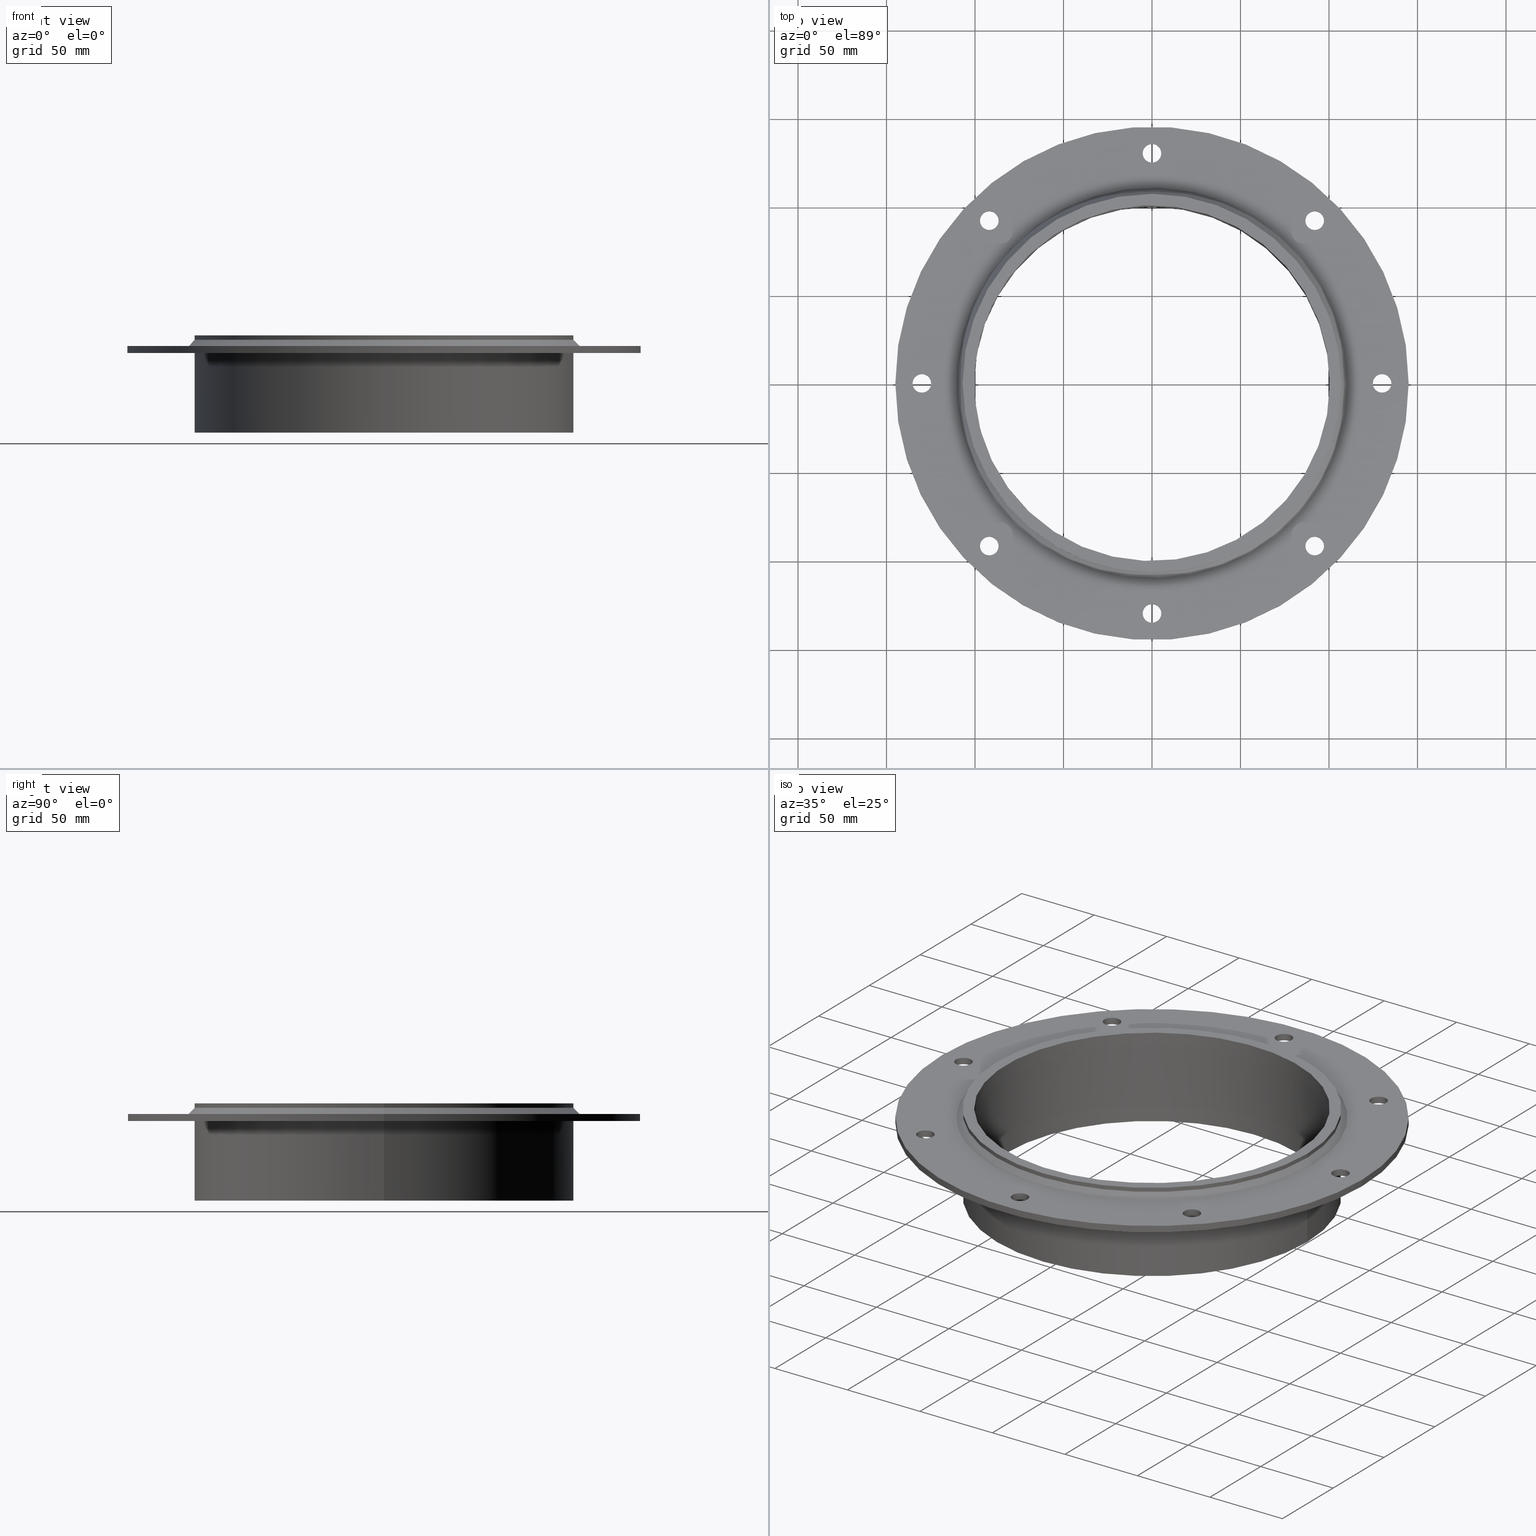
[diagram: canonical four-view strip — front | top / right | iso, engineering-drawing reading convention]
A machine part, canonical four-view strip (front | top / right | iso — engineering-drawing reading convention). The complete STEP part file that produces these views, byte-faithful:
ISO-10303-21;
HEADER;
/****************************************************************
 * Generated by software with PDElib inside                    *
 * PDElib Version v51a, created Wed 11/30/2011                  *
 * ITI Transcendata (http://www.transcendata.com/)              *
 ****************************************************************/
FILE_DESCRIPTION((''),'2;1');
FILE_NAME('C:\\Users\\se-mareng\\Desktop\\RTD\\SLF_\\step\\SLFR200.stp','2017-02-08T07:20:09',('se-mareng'),(''),'Autodesk Inventor 2013','Autodesk Inventor 2013','');
FILE_SCHEMA(('AUTOMOTIVE_DESIGN { 1 0 10303 214 1 1 1 1 }'));
ENDSEC;
DATA;
#5=APPLICATION_CONTEXT('automotive design');
#6=APPLICATION_PROTOCOL_DEFINITION('International Standard','automotive_design',2001,#5);
#7=PRODUCT_CONTEXT('',#5,'mechanical');
#8=PRODUCT('SLFR200_old','SLFR200_old',$,(#7));
#9=PRODUCT_RELATED_PRODUCT_CATEGORY('part',$,(#8));
#10=PRODUCT_DEFINITION_FORMATION('',$,#8);
#11=PRODUCT_DEFINITION_CONTEXT('part definition',#5,'design');
#12=PRODUCT_DEFINITION('',$,#10,#11);
#18=(NAMED_UNIT(*)PLANE_ANGLE_UNIT()SI_UNIT($,.RADIAN.));
#19=DIMENSIONAL_EXPONENTS(0.0,0.0,0.0,0.0,0.0,0.0,0.0);
#20=PLANE_ANGLE_MEASURE_WITH_UNIT(PLANE_ANGLE_MEASURE(0.0174532925),#18);
#24=(CONVERSION_BASED_UNIT('DEGREE',#20)NAMED_UNIT(#19)PLANE_ANGLE_UNIT());
#28=(NAMED_UNIT(*)SI_UNIT($,.STERADIAN.)SOLID_ANGLE_UNIT());
#32=(LENGTH_UNIT()NAMED_UNIT(*)SI_UNIT(.MILLI.,.METRE.));
#34=UNCERTAINTY_MEASURE_WITH_UNIT(LENGTH_MEASURE(0.01),#32,'DISTANCE_ACCURACY_VALUE','');
#36=(GEOMETRIC_REPRESENTATION_CONTEXT(3)GLOBAL_UNCERTAINTY_ASSIGNED_CONTEXT((#34))GLOBAL_UNIT_ASSIGNED_CONTEXT((#24,#28,#32))REPRESENTATION_CONTEXT('None','None'));
#37=AXIS2_PLACEMENT_3D('',#38,#39,#40);
#38=CARTESIAN_POINT('',(0.0,0.0,0.0));
#39=DIRECTION('',(0.0,0.0,1.0));
#40=DIRECTION('',(1.0,0.0,0.0));
#41=SHAPE_REPRESENTATION('',(#37),#36);
#42=PRODUCT_DEFINITION_SHAPE('','',#12);
#43=SHAPE_DEFINITION_REPRESENTATION(#42,#41);
#49=(NAMED_UNIT(*)PLANE_ANGLE_UNIT()SI_UNIT($,.RADIAN.));
#50=DIMENSIONAL_EXPONENTS(0.0,0.0,0.0,0.0,0.0,0.0,0.0);
#51=PLANE_ANGLE_MEASURE_WITH_UNIT(PLANE_ANGLE_MEASURE(0.0174532925),#49);
#55=(CONVERSION_BASED_UNIT('DEGREE',#51)NAMED_UNIT(#50)PLANE_ANGLE_UNIT());
#59=(NAMED_UNIT(*)SI_UNIT($,.STERADIAN.)SOLID_ANGLE_UNIT());
#63=(LENGTH_UNIT()NAMED_UNIT(*)SI_UNIT(.MILLI.,.METRE.));
#65=UNCERTAINTY_MEASURE_WITH_UNIT(LENGTH_MEASURE(0.000001),#63,'DISTANCE_ACCURACY_VALUE','');
#67=(GEOMETRIC_REPRESENTATION_CONTEXT(3)GLOBAL_UNCERTAINTY_ASSIGNED_CONTEXT((#65))GLOBAL_UNIT_ASSIGNED_CONTEXT((#55,#59,#63))REPRESENTATION_CONTEXT('','3D'));
#68=CARTESIAN_POINT('',(-130.0,0.0,-419.79342672401168));
#69=DIRECTION('',(0.0,0.0,1.0));
#70=DIRECTION('',(1.0,0.0,0.0));
#71=AXIS2_PLACEMENT_3D('',#68,#69,#70);
#72=CYLINDRICAL_SURFACE('',#71,5.25);
#73=CARTESIAN_POINT('',(-135.25,-6.429396E-016,-10.0));
#74=VERTEX_POINT('',#73);
#75=CARTESIAN_POINT('',(-130.0,0.0,-10.0));
#76=DIRECTION('',(0.0,0.0,1.0));
#77=DIRECTION('',(1.0,0.0,0.0));
#78=AXIS2_PLACEMENT_3D('',#75,#76,#77);
#79=CIRCLE('',#78,5.25);
#80=EDGE_CURVE('',#74,#74,#79,.T.);
#81=ORIENTED_EDGE('',*,*,#80,.F.);
#82=EDGE_LOOP('',(#81));
#83=FACE_OUTER_BOUND('',#82,.T.);
#84=CARTESIAN_POINT('',(-124.75,0.0,-6.000000000000004));
#85=VERTEX_POINT('',#84);
#86=CARTESIAN_POINT('',(-130.0,0.0,-6.000000000000014));
#87=DIRECTION('',(0.0,0.0,-1.0));
#88=DIRECTION('',(1.0,0.0,0.0));
#89=AXIS2_PLACEMENT_3D('',#86,#87,#88);
#90=CIRCLE('',#89,5.25);
#91=EDGE_CURVE('',#85,#85,#90,.T.);
#92=ORIENTED_EDGE('',*,*,#91,.F.);
#93=EDGE_LOOP('',(#92));
#94=FACE_BOUND('',#93,.T.);
#95=ADVANCED_FACE('',(#83,#94),#72,.F.);
#96=CARTESIAN_POINT('',(-2.664535E-014,-130.0,-419.79342672401168));
#97=DIRECTION('',(0.0,0.0,1.0));
#98=DIRECTION('',(1.0,0.0,0.0));
#99=AXIS2_PLACEMENT_3D('',#96,#97,#98);
#100=CYLINDRICAL_SURFACE('',#99,5.25);
#101=CARTESIAN_POINT('',(-5.250000000000027,-130.0,-10.0));
#102=VERTEX_POINT('',#101);
#103=CARTESIAN_POINT('',(-2.664535E-014,-130.0,-10.0));
#104=DIRECTION('',(0.0,0.0,1.0));
#105=DIRECTION('',(1.0,0.0,0.0));
#106=AXIS2_PLACEMENT_3D('',#103,#104,#105);
#107=CIRCLE('',#106,5.25);
#108=EDGE_CURVE('',#102,#102,#107,.T.);
#109=ORIENTED_EDGE('',*,*,#108,.F.);
#110=EDGE_LOOP('',(#109));
#111=FACE_OUTER_BOUND('',#110,.T.);
#112=CARTESIAN_POINT('',(5.249999999999973,-130.0,-6.000000000000004));
#113=VERTEX_POINT('',#112);
#114=CARTESIAN_POINT('',(-2.664535E-014,-130.0,-6.000000000000014));
#115=DIRECTION('',(0.0,0.0,-1.0));
#116=DIRECTION('',(1.0,0.0,0.0));
#117=AXIS2_PLACEMENT_3D('',#114,#115,#116);
#118=CIRCLE('',#117,5.25);
#119=EDGE_CURVE('',#113,#113,#118,.T.);
#120=ORIENTED_EDGE('',*,*,#119,.F.);
#121=EDGE_LOOP('',(#120));
#122=FACE_BOUND('',#121,.T.);
#123=ADVANCED_FACE('',(#111,#122),#100,.F.);
#124=CARTESIAN_POINT('',(130.0,-2.664535E-014,-419.79342672401168));
#125=DIRECTION('',(0.0,0.0,1.0));
#126=DIRECTION('',(1.0,0.0,0.0));
#127=AXIS2_PLACEMENT_3D('',#124,#125,#126);
#128=CYLINDRICAL_SURFACE('',#127,5.25);
#129=CARTESIAN_POINT('',(124.75,-2.728829E-014,-10.0));
#130=VERTEX_POINT('',#129);
#131=CARTESIAN_POINT('',(130.0,-2.664535E-014,-10.0));
#132=DIRECTION('',(0.0,0.0,1.0));
#133=DIRECTION('',(1.0,0.0,0.0));
#134=AXIS2_PLACEMENT_3D('',#131,#132,#133);
#135=CIRCLE('',#134,5.25);
#136=EDGE_CURVE('',#130,#130,#135,.T.);
#137=ORIENTED_EDGE('',*,*,#136,.F.);
#138=EDGE_LOOP('',(#137));
#139=FACE_OUTER_BOUND('',#138,.T.);
#140=CARTESIAN_POINT('',(135.25,-2.664535E-014,-6.000000000000004));
#141=VERTEX_POINT('',#140);
#142=CARTESIAN_POINT('',(130.0,-2.664535E-014,-6.000000000000014));
#143=DIRECTION('',(0.0,0.0,-1.0));
#144=DIRECTION('',(1.0,0.0,0.0));
#145=AXIS2_PLACEMENT_3D('',#142,#143,#144);
#146=CIRCLE('',#145,5.25);
#147=EDGE_CURVE('',#141,#141,#146,.T.);
#148=ORIENTED_EDGE('',*,*,#147,.F.);
#149=EDGE_LOOP('',(#148));
#150=FACE_BOUND('',#149,.T.);
#151=ADVANCED_FACE('',(#139,#150),#128,.F.);
#152=CARTESIAN_POINT('',(0.0,130.0,-419.79342672401168));
#153=DIRECTION('',(0.0,0.0,1.0));
#154=DIRECTION('',(1.0,0.0,0.0));
#155=AXIS2_PLACEMENT_3D('',#152,#153,#154);
#156=CYLINDRICAL_SURFACE('',#155,5.25);
#157=CARTESIAN_POINT('',(-5.25,130.0,-10.0));
#158=VERTEX_POINT('',#157);
#159=CARTESIAN_POINT('',(0.0,130.0,-10.0));
#160=DIRECTION('',(0.0,0.0,1.0));
#161=DIRECTION('',(1.0,0.0,0.0));
#162=AXIS2_PLACEMENT_3D('',#159,#160,#161);
#163=CIRCLE('',#162,5.25);
#164=EDGE_CURVE('',#158,#158,#163,.T.);
#165=ORIENTED_EDGE('',*,*,#164,.F.);
#166=EDGE_LOOP('',(#165));
#167=FACE_OUTER_BOUND('',#166,.T.);
#168=CARTESIAN_POINT('',(5.25,130.0,-6.000000000000004));
#169=VERTEX_POINT('',#168);
#170=CARTESIAN_POINT('',(0.0,130.0,-6.000000000000014));
#171=DIRECTION('',(0.0,0.0,-1.0));
#172=DIRECTION('',(1.0,0.0,0.0));
#173=AXIS2_PLACEMENT_3D('',#170,#171,#172);
#174=CIRCLE('',#173,5.25);
#175=EDGE_CURVE('',#169,#169,#174,.T.);
#176=ORIENTED_EDGE('',*,*,#175,.F.);
#177=EDGE_LOOP('',(#176));
#178=FACE_BOUND('',#177,.T.);
#179=ADVANCED_FACE('',(#167,#178),#156,.F.);
#180=CARTESIAN_POINT('',(91.92388155425121,91.923881554251182,-419.79342672401168));
#181=DIRECTION('',(0.0,0.0,1.0));
#182=DIRECTION('',(1.0,0.0,0.0));
#183=AXIS2_PLACEMENT_3D('',#180,#181,#182);
#184=CYLINDRICAL_SURFACE('',#183,5.25);
#185=CARTESIAN_POINT('',(86.67388155425121,91.923881554251182,-10.0));
#186=VERTEX_POINT('',#185);
#187=CARTESIAN_POINT('',(91.92388155425121,91.923881554251182,-10.0));
#188=DIRECTION('',(0.0,0.0,1.0));
#189=DIRECTION('',(1.0,0.0,0.0));
#190=AXIS2_PLACEMENT_3D('',#187,#188,#189);
#191=CIRCLE('',#190,5.25);
#192=EDGE_CURVE('',#186,#186,#191,.T.);
#193=ORIENTED_EDGE('',*,*,#192,.F.);
#194=EDGE_LOOP('',(#193));
#195=FACE_OUTER_BOUND('',#194,.T.);
#196=CARTESIAN_POINT('',(97.17388155425121,91.923881554251182,-6.000000000000004));
#197=VERTEX_POINT('',#196);
#198=CARTESIAN_POINT('',(91.92388155425121,91.923881554251182,-6.000000000000014));
#199=DIRECTION('',(0.0,0.0,-1.0));
#200=DIRECTION('',(1.0,0.0,0.0));
#201=AXIS2_PLACEMENT_3D('',#198,#199,#200);
#202=CIRCLE('',#201,5.25);
#203=EDGE_CURVE('',#197,#197,#202,.T.);
#204=ORIENTED_EDGE('',*,*,#203,.F.);
#205=EDGE_LOOP('',(#204));
#206=FACE_BOUND('',#205,.T.);
#207=ADVANCED_FACE('',(#195,#206),#184,.F.);
#208=CARTESIAN_POINT('',(91.923881554251182,-91.92388155425121,-419.79342672401168));
#209=DIRECTION('',(0.0,0.0,1.0));
#210=DIRECTION('',(1.0,0.0,0.0));
#211=AXIS2_PLACEMENT_3D('',#208,#209,#210);
#212=CYLINDRICAL_SURFACE('',#211,5.25);
#213=CARTESIAN_POINT('',(86.673881554251167,-91.92388155425121,-10.0));
#214=VERTEX_POINT('',#213);
#215=CARTESIAN_POINT('',(91.923881554251182,-91.92388155425121,-10.0));
#216=DIRECTION('',(0.0,0.0,1.0));
#217=DIRECTION('',(1.0,0.0,0.0));
#218=AXIS2_PLACEMENT_3D('',#215,#216,#217);
#219=CIRCLE('',#218,5.25);
#220=EDGE_CURVE('',#214,#214,#219,.T.);
#221=ORIENTED_EDGE('',*,*,#220,.F.);
#222=EDGE_LOOP('',(#221));
#223=FACE_OUTER_BOUND('',#222,.T.);
#224=CARTESIAN_POINT('',(97.173881554251182,-91.92388155425121,-6.000000000000004));
#225=VERTEX_POINT('',#224);
#226=CARTESIAN_POINT('',(91.923881554251182,-91.92388155425121,-6.000000000000014));
#227=DIRECTION('',(0.0,0.0,-1.0));
#228=DIRECTION('',(1.0,0.0,0.0));
#229=AXIS2_PLACEMENT_3D('',#226,#227,#228);
#230=CIRCLE('',#229,5.25);
#231=EDGE_CURVE('',#225,#225,#230,.T.);
#232=ORIENTED_EDGE('',*,*,#231,.F.);
#233=EDGE_LOOP('',(#232));
#234=FACE_BOUND('',#233,.T.);
#235=ADVANCED_FACE('',(#223,#234),#212,.F.);
#236=CARTESIAN_POINT('',(-91.92388155425121,-91.923881554251196,-419.79342672401168));
#237=DIRECTION('',(0.0,0.0,1.0));
#238=DIRECTION('',(1.0,0.0,0.0));
#239=AXIS2_PLACEMENT_3D('',#236,#237,#238);
#240=CYLINDRICAL_SURFACE('',#239,5.25);
#241=CARTESIAN_POINT('',(-97.17388155425121,-91.923881554251196,-10.0));
#242=VERTEX_POINT('',#241);
#243=CARTESIAN_POINT('',(-91.92388155425121,-91.923881554251196,-10.0));
#244=DIRECTION('',(0.0,0.0,1.0));
#245=DIRECTION('',(1.0,0.0,0.0));
#246=AXIS2_PLACEMENT_3D('',#243,#244,#245);
#247=CIRCLE('',#246,5.25);
#248=EDGE_CURVE('',#242,#242,#247,.T.);
#249=ORIENTED_EDGE('',*,*,#248,.F.);
#250=EDGE_LOOP('',(#249));
#251=FACE_OUTER_BOUND('',#250,.T.);
#252=CARTESIAN_POINT('',(-86.67388155425121,-91.923881554251196,-6.000000000000004));
#253=VERTEX_POINT('',#252);
#254=CARTESIAN_POINT('',(-91.92388155425121,-91.923881554251196,-6.000000000000014));
#255=DIRECTION('',(0.0,0.0,-1.0));
#256=DIRECTION('',(1.0,0.0,0.0));
#257=AXIS2_PLACEMENT_3D('',#254,#255,#256);
#258=CIRCLE('',#257,5.25);
#259=EDGE_CURVE('',#253,#253,#258,.T.);
#260=ORIENTED_EDGE('',*,*,#259,.F.);
#261=EDGE_LOOP('',(#260));
#262=FACE_BOUND('',#261,.T.);
#263=ADVANCED_FACE('',(#251,#262),#240,.F.);
#264=CARTESIAN_POINT('',(-91.923881554251196,91.92388155425121,-419.79342672401168));
#265=DIRECTION('',(0.0,0.0,1.0));
#266=DIRECTION('',(1.0,0.0,0.0));
#267=AXIS2_PLACEMENT_3D('',#264,#265,#266);
#268=CYLINDRICAL_SURFACE('',#267,5.25);
#269=CARTESIAN_POINT('',(-97.173881554251196,91.92388155425121,-10.0));
#270=VERTEX_POINT('',#269);
#271=CARTESIAN_POINT('',(-91.923881554251196,91.92388155425121,-10.0));
#272=DIRECTION('',(0.0,0.0,1.0));
#273=DIRECTION('',(1.0,0.0,0.0));
#274=AXIS2_PLACEMENT_3D('',#271,#272,#273);
#275=CIRCLE('',#274,5.25);
#276=EDGE_CURVE('',#270,#270,#275,.T.);
#277=ORIENTED_EDGE('',*,*,#276,.F.);
#278=EDGE_LOOP('',(#277));
#279=FACE_OUTER_BOUND('',#278,.T.);
#280=CARTESIAN_POINT('',(-86.673881554251182,91.92388155425121,-6.000000000000004));
#281=VERTEX_POINT('',#280);
#282=CARTESIAN_POINT('',(-91.923881554251196,91.92388155425121,-6.000000000000014));
#283=DIRECTION('',(0.0,0.0,-1.0));
#284=DIRECTION('',(1.0,0.0,0.0));
#285=AXIS2_PLACEMENT_3D('',#282,#283,#284);
#286=CIRCLE('',#285,5.25);
#287=EDGE_CURVE('',#281,#281,#286,.T.);
#288=ORIENTED_EDGE('',*,*,#287,.F.);
#289=EDGE_LOOP('',(#288));
#290=FACE_BOUND('',#289,.T.);
#291=ADVANCED_FACE('',(#279,#290),#268,.F.);
#292=CARTESIAN_POINT('',(0.0,0.0,-4.250000000000003));
#293=DIRECTION('',(0.0,0.0,-1.0));
#294=DIRECTION('',(-1.0,0.0,0.0));
#295=AXIS2_PLACEMENT_3D('',#292,#293,#294);
#296=CONICAL_SURFACE('',#295,108.75,44.999999999999979);
#297=CARTESIAN_POINT('',(110.5,1.353235E-014,-6.000000000000004));
#298=VERTEX_POINT('',#297);
#299=CARTESIAN_POINT('',(0.0,0.0,-6.000000000000004));
#300=DIRECTION('',(0.0,0.0,1.0));
#301=DIRECTION('',(-1.0,0.0,0.0));
#302=AXIS2_PLACEMENT_3D('',#299,#300,#301);
#303=CIRCLE('',#302,110.5);
#304=EDGE_CURVE('',#298,#298,#303,.T.);
#305=ORIENTED_EDGE('',*,*,#304,.T.);
#306=EDGE_LOOP('',(#305));
#307=FACE_OUTER_BOUND('',#306,.T.);
#308=CARTESIAN_POINT('',(107.00000000000001,-1.310372E-014,-2.500000000000003));
#309=VERTEX_POINT('',#308);
#310=CARTESIAN_POINT('',(0.0,0.0,-2.500000000000003));
#311=DIRECTION('',(0.0,0.0,-1.0));
#312=DIRECTION('',(-1.0,0.0,0.0));
#313=AXIS2_PLACEMENT_3D('',#310,#311,#312);
#314=CIRCLE('',#313,107.00000000000001);
#315=EDGE_CURVE('',#309,#309,#314,.T.);
#316=ORIENTED_EDGE('',*,*,#315,.T.);
#317=EDGE_LOOP('',(#316));
#318=FACE_BOUND('',#317,.T.);
#319=ADVANCED_FACE('',(#307,#318),#296,.T.);
#320=CARTESIAN_POINT('',(-8.013508E-015,3.266863E-015,-6.000000000000004));
#321=DIRECTION('',(0.0,0.0,1.0));
#322=DIRECTION('',(1.0,0.0,0.0));
#323=AXIS2_PLACEMENT_3D('',#320,#321,#322);
#324=PLANE('',#323);
#325=CARTESIAN_POINT('',(145.0,1.775738E-014,-6.000000000000002));
#326=VERTEX_POINT('',#325);
#327=CARTESIAN_POINT('',(0.0,0.0,-6.000000000000002));
#328=DIRECTION('',(0.0,0.0,1.0));
#329=DIRECTION('',(-1.0,0.0,0.0));
#330=AXIS2_PLACEMENT_3D('',#327,#328,#329);
#331=CIRCLE('',#330,145.0);
#332=EDGE_CURVE('',#326,#326,#331,.T.);
#333=ORIENTED_EDGE('',*,*,#332,.T.);
#334=EDGE_LOOP('',(#333));
#335=FACE_OUTER_BOUND('',#334,.T.);
#336=ORIENTED_EDGE('',*,*,#91,.T.);
#337=EDGE_LOOP('',(#336));
#338=FACE_BOUND('',#337,.T.);
#339=ORIENTED_EDGE('',*,*,#119,.T.);
#340=EDGE_LOOP('',(#339));
#341=FACE_BOUND('',#340,.T.);
#342=ORIENTED_EDGE('',*,*,#147,.T.);
#343=EDGE_LOOP('',(#342));
#344=FACE_BOUND('',#343,.T.);
#345=ORIENTED_EDGE('',*,*,#175,.T.);
#346=EDGE_LOOP('',(#345));
#347=FACE_BOUND('',#346,.T.);
#348=ORIENTED_EDGE('',*,*,#203,.T.);
#349=EDGE_LOOP('',(#348));
#350=FACE_BOUND('',#349,.T.);
#351=ORIENTED_EDGE('',*,*,#231,.T.);
#352=EDGE_LOOP('',(#351));
#353=FACE_BOUND('',#352,.T.);
#354=ORIENTED_EDGE('',*,*,#259,.T.);
#355=EDGE_LOOP('',(#354));
#356=FACE_BOUND('',#355,.T.);
#357=ORIENTED_EDGE('',*,*,#287,.T.);
#358=EDGE_LOOP('',(#357));
#359=FACE_BOUND('',#358,.T.);
#360=ORIENTED_EDGE('',*,*,#304,.F.);
#361=EDGE_LOOP('',(#360));
#362=FACE_BOUND('',#361,.T.);
#363=ADVANCED_FACE('',(#335,#338,#341,#344,#347,#350,#353,#356,#359,#362),#324,.T.);
#364=CARTESIAN_POINT('',(0.0,0.0,0.0));
#365=DIRECTION('',(0.0,0.0,-1.0));
#366=DIRECTION('',(-1.0,0.0,0.0));
#367=AXIS2_PLACEMENT_3D('',#364,#365,#366);
#368=CYLINDRICAL_SURFACE('',#367,107.00000000000001);
#369=CARTESIAN_POINT('',(107.00000000000001,1.310372E-014,0.0));
#370=VERTEX_POINT('',#369);
#371=CARTESIAN_POINT('',(0.0,0.0,0.0));
#372=DIRECTION('',(0.0,0.0,-1.0));
#373=DIRECTION('',(-1.0,0.0,0.0));
#374=AXIS2_PLACEMENT_3D('',#371,#372,#373);
#375=CIRCLE('',#374,107.00000000000001);
#376=EDGE_CURVE('',#370,#370,#375,.T.);
#377=ORIENTED_EDGE('',*,*,#376,.T.);
#378=EDGE_LOOP('',(#377));
#379=FACE_OUTER_BOUND('',#378,.T.);
#380=ORIENTED_EDGE('',*,*,#315,.F.);
#381=EDGE_LOOP('',(#380));
#382=FACE_BOUND('',#381,.T.);
#383=ADVANCED_FACE('',(#379,#382),#368,.T.);
#384=CARTESIAN_POINT('',(-8.013508E-015,3.266863E-015,-10.000000000000004));
#385=DIRECTION('',(0.0,0.0,1.0));
#386=DIRECTION('',(1.0,0.0,0.0));
#387=AXIS2_PLACEMENT_3D('',#384,#385,#386);
#388=PLANE('',#387);
#389=CARTESIAN_POINT('',(145.0,1.775738E-014,-10.0));
#390=VERTEX_POINT('',#389);
#391=CARTESIAN_POINT('',(0.0,0.0,-10.0));
#392=DIRECTION('',(0.0,0.0,-1.0));
#393=DIRECTION('',(-1.0,0.0,0.0));
#394=AXIS2_PLACEMENT_3D('',#391,#392,#393);
#395=CIRCLE('',#394,145.0);
#396=EDGE_CURVE('',#390,#390,#395,.T.);
#397=ORIENTED_EDGE('',*,*,#396,.T.);
#398=EDGE_LOOP('',(#397));
#399=FACE_OUTER_BOUND('',#398,.T.);
#400=ORIENTED_EDGE('',*,*,#80,.T.);
#401=EDGE_LOOP('',(#400));
#402=FACE_BOUND('',#401,.T.);
#403=ORIENTED_EDGE('',*,*,#108,.T.);
#404=EDGE_LOOP('',(#403));
#405=FACE_BOUND('',#404,.T.);
#406=ORIENTED_EDGE('',*,*,#136,.T.);
#407=EDGE_LOOP('',(#406));
#408=FACE_BOUND('',#407,.T.);
#409=ORIENTED_EDGE('',*,*,#164,.T.);
#410=EDGE_LOOP('',(#409));
#411=FACE_BOUND('',#410,.T.);
#412=ORIENTED_EDGE('',*,*,#192,.T.);
#413=EDGE_LOOP('',(#412));
#414=FACE_BOUND('',#413,.T.);
#415=ORIENTED_EDGE('',*,*,#220,.T.);
#416=EDGE_LOOP('',(#415));
#417=FACE_BOUND('',#416,.T.);
#418=ORIENTED_EDGE('',*,*,#248,.T.);
#419=EDGE_LOOP('',(#418));
#420=FACE_BOUND('',#419,.T.);
#421=ORIENTED_EDGE('',*,*,#276,.T.);
#422=EDGE_LOOP('',(#421));
#423=FACE_BOUND('',#422,.T.);
#424=CARTESIAN_POINT('',(107.00000000000001,1.310372E-014,-10.0));
#425=VERTEX_POINT('',#424);
#426=CARTESIAN_POINT('',(0.0,0.0,-10.000000000000004));
#427=DIRECTION('',(0.0,0.0,-1.0));
#428=DIRECTION('',(-1.0,0.0,0.0));
#429=AXIS2_PLACEMENT_3D('',#426,#427,#428);
#430=CIRCLE('',#429,107.00000000000001);
#431=EDGE_CURVE('',#425,#425,#430,.T.);
#432=ORIENTED_EDGE('',*,*,#431,.F.);
#433=EDGE_LOOP('',(#432));
#434=FACE_BOUND('',#433,.T.);
#435=ADVANCED_FACE('',(#399,#402,#405,#408,#411,#414,#417,#420,#423,#434),#388,.F.);
#436=CARTESIAN_POINT('',(0.0,0.0,-8.0));
#437=DIRECTION('',(0.0,0.0,1.0));
#438=DIRECTION('',(-1.0,0.0,0.0));
#439=AXIS2_PLACEMENT_3D('',#436,#437,#438);
#440=CYLINDRICAL_SURFACE('',#439,145.0);
#441=ORIENTED_EDGE('',*,*,#396,.F.);
#442=EDGE_LOOP('',(#441));
#443=FACE_OUTER_BOUND('',#442,.T.);
#444=ORIENTED_EDGE('',*,*,#332,.F.);
#445=EDGE_LOOP('',(#444));
#446=FACE_BOUND('',#445,.T.);
#447=ADVANCED_FACE('',(#443,#446),#440,.T.);
#448=CARTESIAN_POINT('',(0.0,0.0,-307.59876462690806));
#449=DIRECTION('',(0.0,0.0,1.0));
#450=DIRECTION('',(1.0,0.0,0.0));
#451=AXIS2_PLACEMENT_3D('',#448,#449,#450);
#452=CYLINDRICAL_SURFACE('',#451,100.5);
#453=CARTESIAN_POINT('',(-100.5,-1.230770E-014,-55.0));
#454=VERTEX_POINT('',#453);
#455=CARTESIAN_POINT('',(0.0,0.0,-55.0));
#456=DIRECTION('',(0.0,0.0,1.0));
#457=DIRECTION('',(1.0,0.0,0.0));
#458=AXIS2_PLACEMENT_3D('',#455,#456,#457);
#459=CIRCLE('',#458,100.5);
#460=EDGE_CURVE('',#454,#454,#459,.T.);
#461=ORIENTED_EDGE('',*,*,#460,.F.);
#462=EDGE_LOOP('',(#461));
#463=FACE_OUTER_BOUND('',#462,.T.);
#464=CARTESIAN_POINT('',(100.5,0.0,0.0));
#465=VERTEX_POINT('',#464);
#466=CARTESIAN_POINT('',(0.0,0.0,0.0));
#467=DIRECTION('',(0.0,0.0,-1.0));
#468=DIRECTION('',(1.0,0.0,0.0));
#469=AXIS2_PLACEMENT_3D('',#466,#467,#468);
#470=CIRCLE('',#469,100.5);
#471=EDGE_CURVE('',#465,#465,#470,.T.);
#472=ORIENTED_EDGE('',*,*,#471,.F.);
#473=EDGE_LOOP('',(#472));
#474=FACE_BOUND('',#473,.T.);
#475=ADVANCED_FACE('',(#463,#474),#452,.F.);
#476=CARTESIAN_POINT('',(0.0,0.0,0.0));
#477=DIRECTION('',(0.0,0.0,-1.0));
#478=DIRECTION('',(-1.0,0.0,0.0));
#479=AXIS2_PLACEMENT_3D('',#476,#477,#478);
#480=CYLINDRICAL_SURFACE('',#479,107.00000000000001);
#481=ORIENTED_EDGE('',*,*,#431,.T.);
#482=EDGE_LOOP('',(#481));
#483=FACE_OUTER_BOUND('',#482,.T.);
#484=CARTESIAN_POINT('',(107.00000000000001,1.310372E-014,-55.0));
#485=VERTEX_POINT('',#484);
#486=CARTESIAN_POINT('',(0.0,0.0,-55.0));
#487=DIRECTION('',(0.0,0.0,-1.0));
#488=DIRECTION('',(-1.0,0.0,0.0));
#489=AXIS2_PLACEMENT_3D('',#486,#487,#488);
#490=CIRCLE('',#489,107.00000000000001);
#491=EDGE_CURVE('',#485,#485,#490,.T.);
#492=ORIENTED_EDGE('',*,*,#491,.F.);
#493=EDGE_LOOP('',(#492));
#494=FACE_BOUND('',#493,.T.);
#495=ADVANCED_FACE('',(#483,#494),#480,.T.);
#496=CARTESIAN_POINT('',(-1.091977E-015,0.0,-55.0));
#497=DIRECTION('',(0.0,0.0,1.0));
#498=DIRECTION('',(1.0,0.0,0.0));
#499=AXIS2_PLACEMENT_3D('',#496,#497,#498);
#500=PLANE('',#499);
#501=ORIENTED_EDGE('',*,*,#491,.T.);
#502=EDGE_LOOP('',(#501));
#503=FACE_OUTER_BOUND('',#502,.T.);
#504=ORIENTED_EDGE('',*,*,#460,.T.);
#505=EDGE_LOOP('',(#504));
#506=FACE_BOUND('',#505,.T.);
#507=ADVANCED_FACE('',(#503,#506),#500,.F.);
#508=CARTESIAN_POINT('',(-1.091977E-015,0.0,0.0));
#509=DIRECTION('',(0.0,0.0,1.0));
#510=DIRECTION('',(1.0,0.0,0.0));
#511=AXIS2_PLACEMENT_3D('',#508,#509,#510);
#512=PLANE('',#511);
#513=ORIENTED_EDGE('',*,*,#376,.F.);
#514=EDGE_LOOP('',(#513));
#515=FACE_OUTER_BOUND('',#514,.T.);
#516=ORIENTED_EDGE('',*,*,#471,.T.);
#517=EDGE_LOOP('',(#516));
#518=FACE_BOUND('',#517,.T.);
#519=ADVANCED_FACE('',(#515,#518),#512,.T.);
#520=CLOSED_SHELL('',(#95,#123,#151,#179,#207,#235,#263,#291,#319,#363,#383,#435,#447,#475,#495,#507,#519));
#521=MANIFOLD_SOLID_BREP('Solid1',#520);
#522=COLOUR_RGB('',0.800000011920929,0.796078443527222,0.701960802078247);
#523=FILL_AREA_STYLE_COLOUR('',#522);
#524=FILL_AREA_STYLE('',(#523));
#525=SURFACE_STYLE_FILL_AREA(#524);
#526=SURFACE_SIDE_STYLE('',(#525));
#527=SURFACE_STYLE_USAGE(.BOTH.,#526);
#528=PRESENTATION_STYLE_ASSIGNMENT((#527));
#529=STYLED_ITEM('',(#528,#537),#521);
#530=MECHANICAL_DESIGN_GEOMETRIC_PRESENTATION_REPRESENTATION('',(#529),#67);
#531=COLOUR_RGB('204,203,179',0.800000011920929,0.796078443527222,0.701960802078247);
#532=FILL_AREA_STYLE_COLOUR('204,203,179',#531);
#533=FILL_AREA_STYLE('204,203,179',(#532));
#534=SURFACE_STYLE_FILL_AREA(#533);
#535=SURFACE_SIDE_STYLE('204,203,179',(#534));
#536=SURFACE_STYLE_USAGE(.BOTH.,#535);
#537=PRESENTATION_STYLE_ASSIGNMENT((#536));
#538=ADVANCED_BREP_SHAPE_REPRESENTATION('ABSR',(#521),#36);
#539=SHAPE_REPRESENTATION_RELATIONSHIP('SRR','None',#538,#41);
ENDSEC;
END-ISO-10303-21;
